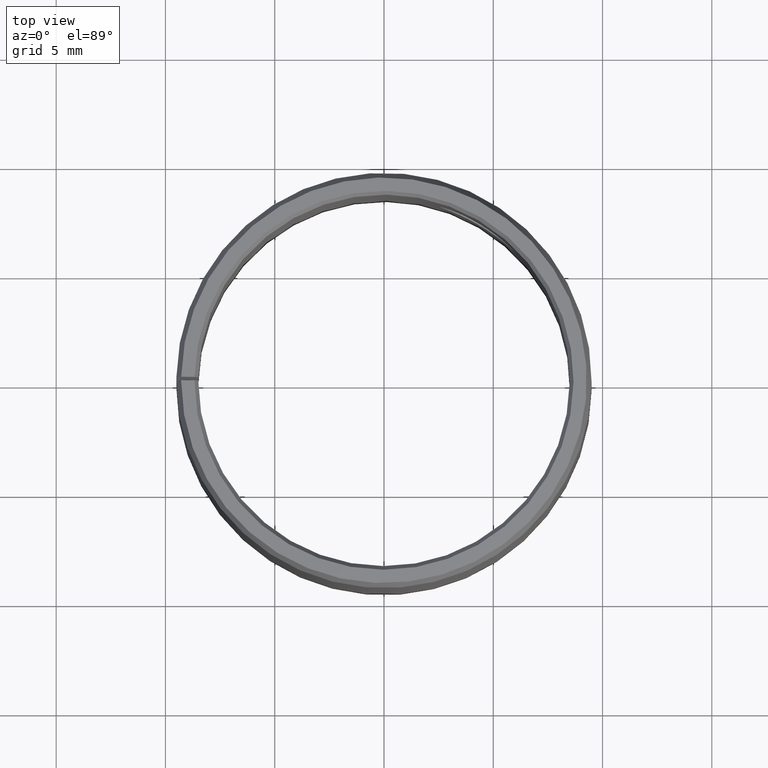
[diagram: clean part render]
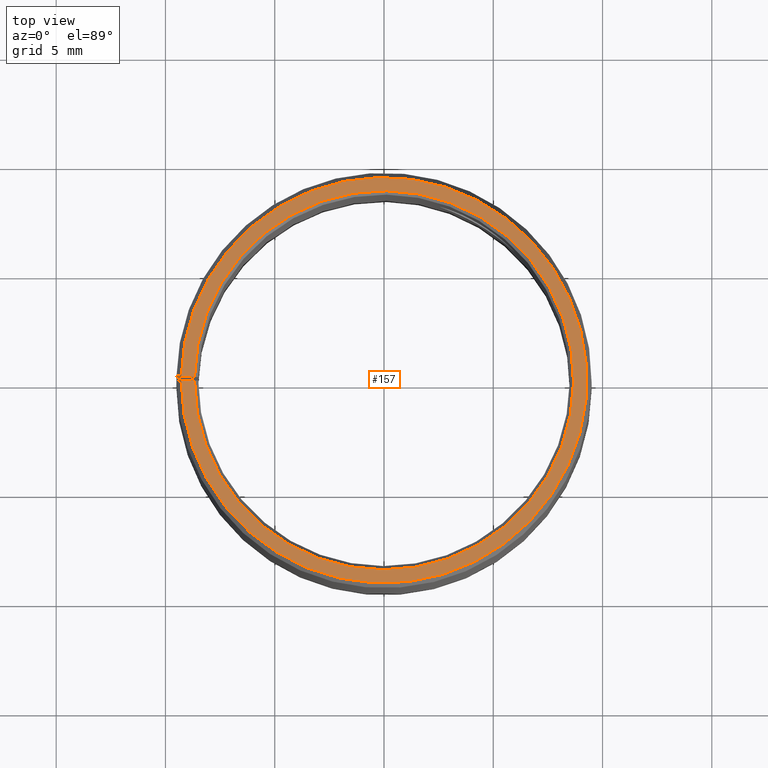
[diagram: same view with one face highlighted and labeled with its STEP entity id]
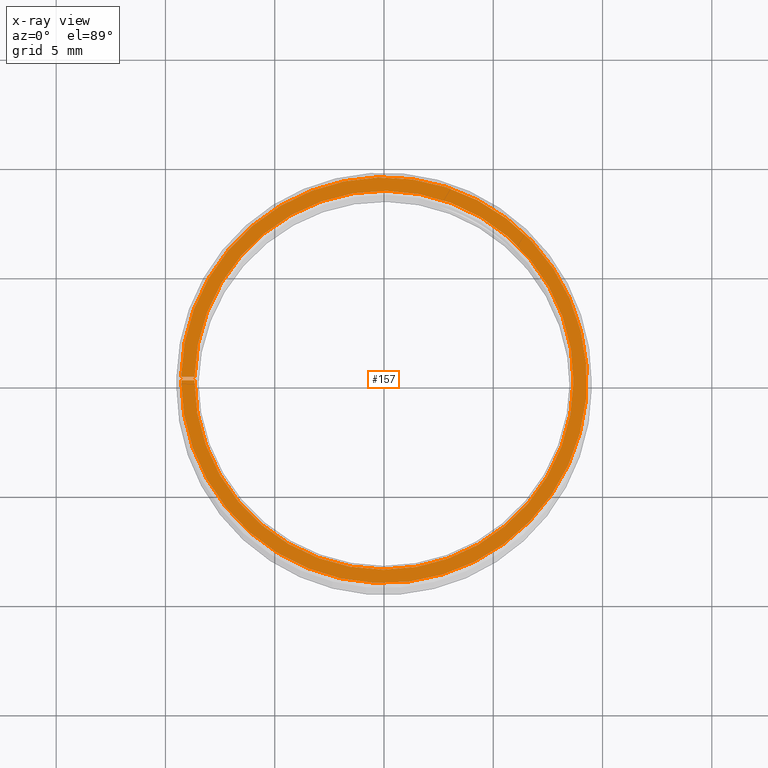
[diagram: x-ray of the same camera — body ghosted, the highlighted face saturated]
A machine part, top view. The second image highlights one B-rep face of the part: STEP entity #157.
The next image is the same camera in x-ray: the body ghosted, the highlighted face saturated — about 0% of this face is hidden behind the body in this view.
In plain terms, the highlighted planar face has unit normal (0, -0, 1).
Its self-contained STEP definition (entity closure, byte-faithful):
#157=ADVANCED_FACE('',(#174),#175,.T.);
#174=FACE_OUTER_BOUND('',#200,.T.);
#175=PLANE('',#201);
#200=EDGE_LOOP('',(#245,#246,#247,#248));
#201=AXIS2_PLACEMENT_3D('',#249,#250,#251);
#245=ORIENTED_EDGE('',*,*,#316,.T.);
#246=ORIENTED_EDGE('',*,*,#317,.T.);
#247=ORIENTED_EDGE('',*,*,#318,.F.);
#248=ORIENTED_EDGE('',*,*,#312,.F.);
#249=CARTESIAN_POINT('',(0.000161986567278495,0.00928020422408375,0.02));
#250=DIRECTION('',(-6.12323399573677E-017,0.0,1.0));
#251=DIRECTION('',(1.0,0.0,6.12323399573677E-017));
#312=EDGE_CURVE('',#346,#347,#348,.T.);
#316=EDGE_CURVE('',#346,#354,#355,.T.);
#317=EDGE_CURVE('',#354,#356,#357,.T.);
#318=EDGE_CURVE('',#347,#356,#358,.T.);
#346=VERTEX_POINT('',#396);
#347=VERTEX_POINT('',#397);
#348=CIRCLE('',#398,0.00928161785944028);
#354=VERTEX_POINT('',#406);
#355=LINE('',#407,#408);
#356=VERTEX_POINT('',#409);
#357=CIRCLE('',#410,0.00867320508075689);
#358=LINE('',#411,#412);
#396=CARTESIAN_POINT('',(0.000161986567278495,0.00928020422408375,0.02));
#397=CARTESIAN_POINT('',(-8.67361737988404E-018,0.00928161785944027,0.02));
#398=AXIS2_PLACEMENT_3D('',#556,#557,#558);
#406=CARTESIAN_POINT('',(0.000151368300183275,0.00867188410961347,0.02));
#407=CARTESIAN_POINT('',(0.000161986567278495,0.00928020422408375,0.02));
#408=VECTOR('',#564,1.0);
#409=CARTESIAN_POINT('',(-8.67361737988404E-018,0.00867320508075688,0.02));
#410=AXIS2_PLACEMENT_3D('',#565,#566,#567);
#411=CARTESIAN_POINT('',(-8.67361737988404E-018,0.00928161785944027,0.02));
#412=VECTOR('',#568,1.0);
#556=CARTESIAN_POINT('',(-8.67361737988404E-018,-6.93889390390723E-018,0.02));
#557=DIRECTION('',(6.12323399573677E-017,0.0,-1.0));
#558=DIRECTION('',(-1.0,0.0,-6.12323399573677E-017));
#564=DIRECTION('',(-0.0174524064372836,-0.999847695156391,-1.0686516840419E-018));
#565=CARTESIAN_POINT('',(-8.67361737988404E-018,-6.93889390390723E-018,0.02));
#566=DIRECTION('',(6.12323399573677E-017,0.0,-1.0));
#567=DIRECTION('',(-1.0,0.0,-6.12323399573677E-017));
#568=DIRECTION('',(0.0,-1.0,0.0));